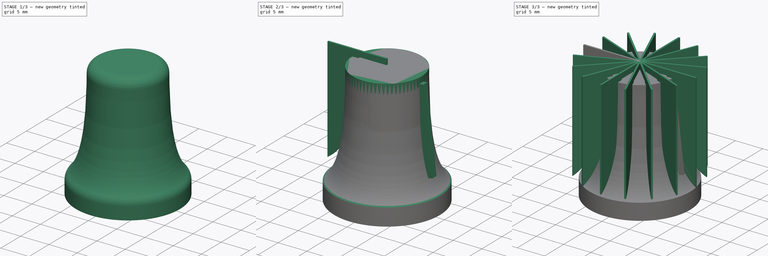
[diagram: build sequence overview — one tinted view per stage of 3, left to right]
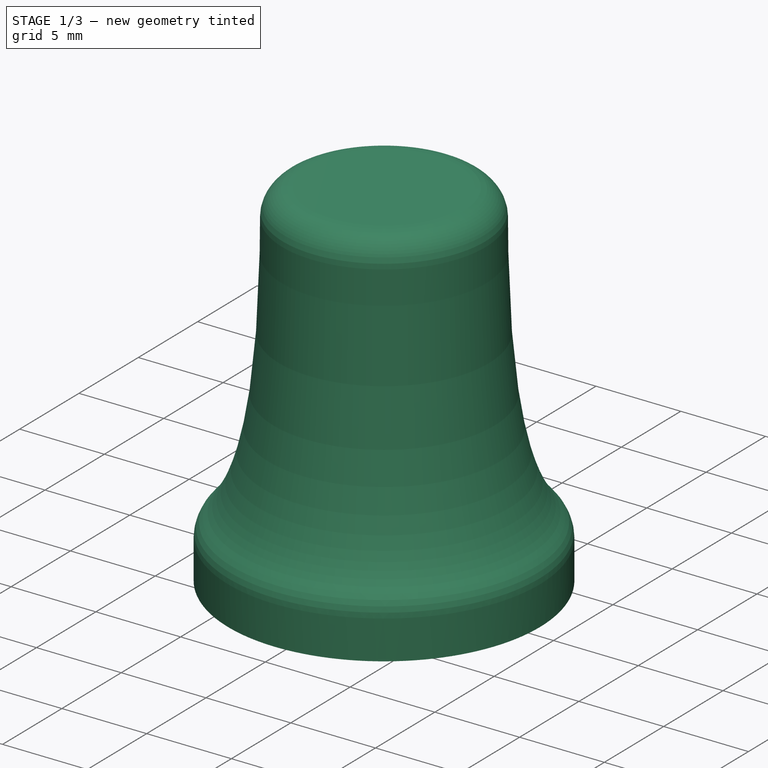
[diagram: stage 1 of 3 — iso view after this stage's code; geometry added in this stage tinted green]
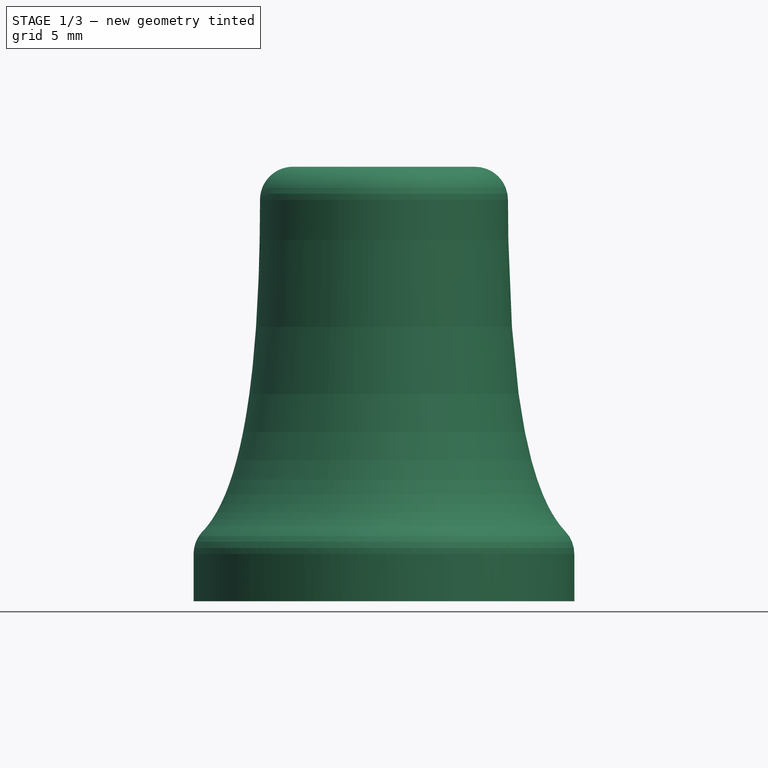
[diagram: stage 1 of 3 — front view after this stage's code; geometry added in this stage tinted green]
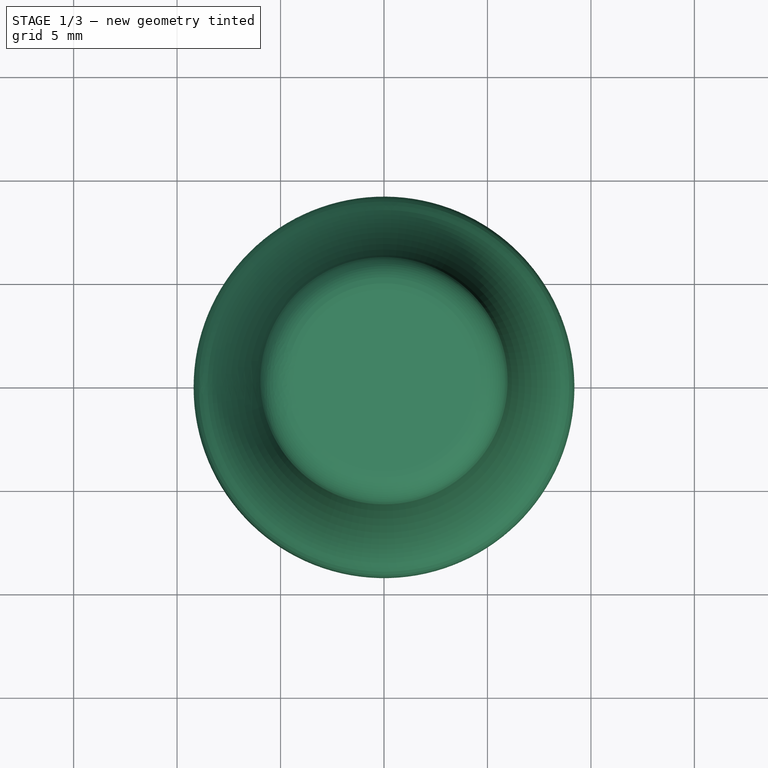
[diagram: stage 1 of 3 — top view after this stage's code; geometry added in this stage tinted green]
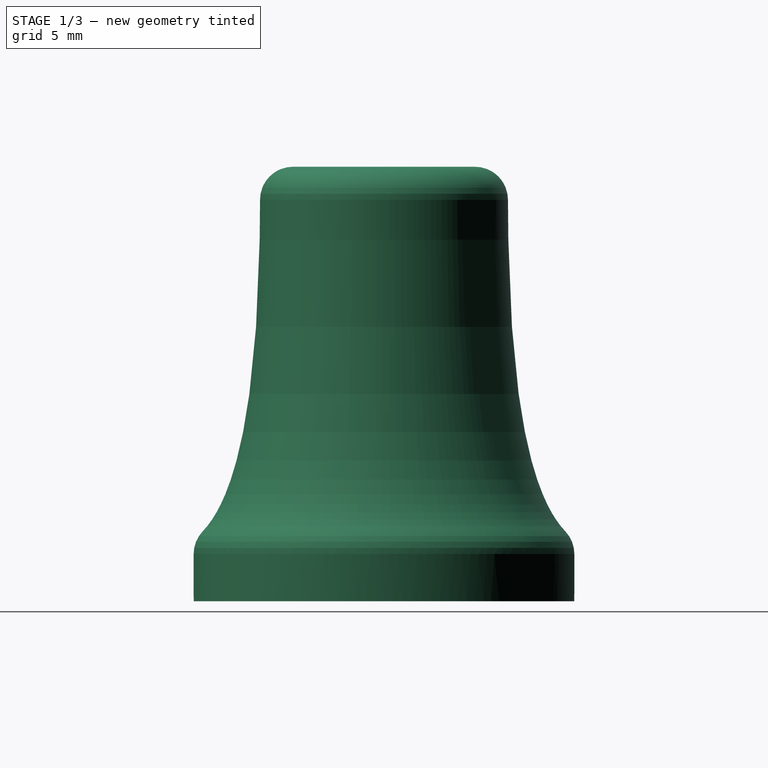
[diagram: stage 1 of 3 — right view after this stage's code; geometry added in this stage tinted green]
FCSTD DOCUMENT  (FreeCAD 0.18R16146 (Git))
Label: PotiKnob
License: All rights reserved
LicenseURL: http://en.wikipedia.org/wiki/All_rights_reserved
objects: Sketcher::SketchObject×4, Part::Feature×3, PartDesign::Fillet×3, PartDesign::Pad×2, PartDesign::Body×2, PartDesign::Revolution×1, PartDesign::PolarPattern×1
note: 19 computed .brp shape members not serialized (recipe doc carries the construction recipe); baked Part::Feature solids carry a one-line shape summary decoded from their .brp

FEATURE [Sketcher::SketchObject] Sketch
  MapMode = 5
  Placement = pos=(0,0,0) rot=(1,0,0;1.5708rad)
  Support = -> [XZ_Plane]
  sketch-geometry (21):
    g0: LineSegment StartX=0 StartY=21 StartZ=0 EndX=-6 EndY=21 EndZ=0
    g1: LineSegment StartX=-9.3 StartY=0 StartZ=0 EndX=-9.3 EndY=3 EndZ=0
    g2: Circle [constr] CenterX=-9.3 CenterY=3 CenterZ=0 NormalX=0 NormalY=0 NormalZ=1 AngleXU=0 Radius=2
    g3: Circle [constr] CenterX=-5.827 CenterY=5.389 CenterZ=0 NormalX=0 NormalY=0 NormalZ=1 AngleXU=0 Radius=2
    g4: Circle [constr] CenterX=-6 CenterY=21 CenterZ=0 NormalX=0 NormalY=0 NormalZ=1 AngleXU=0 Radius=2
    g5: BSplineCurve PolesCount=3 KnotsCount=2 Degree=2 IsPeriodic=0
    g6: GeomPoint [constr] X=-11 Y=4 Z=0
    g7: LineSegment StartX=0 StartY=21 StartZ=0 EndX=0 EndY=19.4 EndZ=0
    g8: LineSegment StartX=0 StartY=19.4 StartZ=0 EndX=-4.2 EndY=19.4 EndZ=0
    g9: Circle [constr] CenterX=-8.01845 CenterY=2.2205 CenterZ=0 NormalX=0 NormalY=0 NormalZ=1 AngleXU=0 Radius=0.3
    g10: Circle [constr] CenterX=-4.54545 CenterY=4.6095 CenterZ=0 NormalX=0 NormalY=0 NormalZ=1 AngleXU=0 Radius=0.3
    g11: Circle [constr] CenterX=-4.2 CenterY=19.4 CenterZ=0 NormalX=0 NormalY=0 NormalZ=1 AngleXU=0 Radius=0.3
    g12: BSplineCurve PolesCount=3 KnotsCount=2 Degree=2 IsPeriodic=0
    g13: GeomPoint [constr] X=-8.01845 Y=2.2205 Z=0
    g14: GeomPoint [constr] X=-4.2 Y=19.4 Z=0
    g15: LineSegment [constr] StartX=-9.3 StartY=3 StartZ=0 EndX=-8.01845 EndY=2.2205 EndZ=0
    g16: LineSegment [constr] StartX=-5.827 StartY=5.389 StartZ=0 EndX=-4.54545 EndY=4.6095 EndZ=0
    g17: LineSegment [constr] StartX=-5.827 StartY=5.389 StartZ=0 EndX=0 EndY=5.389 EndZ=0
    g18: LineSegment StartX=-8.3 StartY=0 StartZ=0 EndX=-9.3 EndY=0 EndZ=0
    g19: LineSegment StartX=-8.01845 StartY=2.2205 StartZ=0 EndX=-8.3 EndY=2 EndZ=0
    g20: LineSegment StartX=-8.3 StartY=2 StartZ=0 EndX=-8.3 EndY=0 EndZ=0
  constraints (52):
    c: PointOnObject(g0,g-2)
    c: Horizontal(g0)
    c: Vertical(g1)
    c: Coincident(g5,g1)
    c: Radius(g2) = 2
    c: Equal(g2,g3)
    c: Equal(g2,g4)
    c: Coincident(g5,g0)
    c: InternalAlignment(g2,g5)
    c: InternalAlignment(g3,g5)
    c: InternalAlignment(g4,g5)
    c: DistanceX(g1,g-1) = 9.3
    c: DistanceY(g1,g1) = 3
    c: DistanceX(g0,g0) = 6
    c: Coincident(g0,g7)
    c: Vertical(g7)
    c: Coincident(g7,g8)
    c: Horizontal(g8)
    c: Radius(g9) = 0.3
    c: Equal(g9,g10)
    c: Equal(g9,g11)
    c: Coincident(g12,g8)
    c: InternalAlignment(g9,g12)
    c: InternalAlignment(g10,g12)
    c: InternalAlignment(g11,g12)
    c: InternalAlignment(g13,g12)
    c: InternalAlignment(g14,g12)
    c: Coincident(g15,g1)
    c: Coincident(g16,g3)
    c: Coincident(g16,g10)
    c: Coincident(g17,g3)
    c: Horizontal(g17)
    c: PointOnObject(g17,g-2)
    c: Angle(g16,g17) = 0.546463
    c: Equal(g16,g15)
    c: DistanceX(g8,g8) = 4.2
    c: PointOnObject(g18,g-1)
    c: Coincident(g18,g1)
    c: Horizontal(g18)
    c: Coincident(g19,g20)
    c: Vertical(g20)
    c: Coincident(g19,g12)
    c: Coincident(g12,g15)
    c: DistanceX(g18,g18) = 1
    c: Coincident(g20,g18)
    c: Angle(g-1,g15) = 2.59513
    c: DistanceY(g20,g20) = 2
    c: Distance(g15) = 1.5
    c: DistanceY(g7,g7) = 1.6
    c: DistanceY(g18,g0) = 21
    c: DistanceX(g3,g-1) = 5.827
    c: DistanceY(g-1,g3) = 5.389
FEATURE [PartDesign::Revolution] Revolution
  Angle = 360
  Axis = (0,-2e-16,1)
  Base = (0,0,0)
  Placement = pos=(0,0,0) rot=(1,0,0;1.5708rad)
  Profile = -> Sketch
  ReferenceAxis = -> Sketch [V_Axis]
FEATURE [Part::Feature] Part__Feature002  label="Nut M9x0.75"
  Placement = pos=(0,0,0.6) rot=(0,0,1;0rad)
  shape: bbox 18.25 x 18.25 x 2.691 mm, 26 faces (baked)
FEATURE [Part::Feature] Part__Feature003  label="Washer M9"
  Placement = pos=(0,-1e-15,0.6) rot=(1,0,0;3.14159rad)
  shape: bbox 16 x 16 x 0.6 mm, 4 faces (baked)
FEATURE [Sketcher::SketchObject] Sketch004
  MapMode = 5
  Placement = pos=(0,-4e-15,19.4) rot=(1,0,0;3.14159rad)
  sketch-geometry (3):
    g0: ArcOfCircle CenterX=0 CenterY=0 CenterZ=0 NormalX=0 NormalY=0 NormalZ=1 AngleXU=0 Radius=2.47507 StartAngle=3.75424 EndAngle=8.81213
    g1: LineSegment StartX=-2.02493 StartY=1.42326 StartZ=0 EndX=-2.02493 EndY=-1.42326 EndZ=0
    g2: GeomPoint X=2.47507 Y=0 Z=0
  constraints (7):
    c: Coincident(g0,g-1)
    c: Coincident(g1,g0)
    c: Coincident(g1,g0)
    c: Vertical(g1)
    c: PointOnObject(g2,g0)
    c: PointOnObject(g2,g-1)
    c: DistanceX(g0,g2) = 4.5
FEATURE [PartDesign::Fillet] Fillet001
  Base = -> Revolution [Edge1,Edge2]
  BaseFeature = -> Revolution
  Placement = pos=(0,0,0) rot=(1,0,0;1.5708rad)
  Radius = 1.6
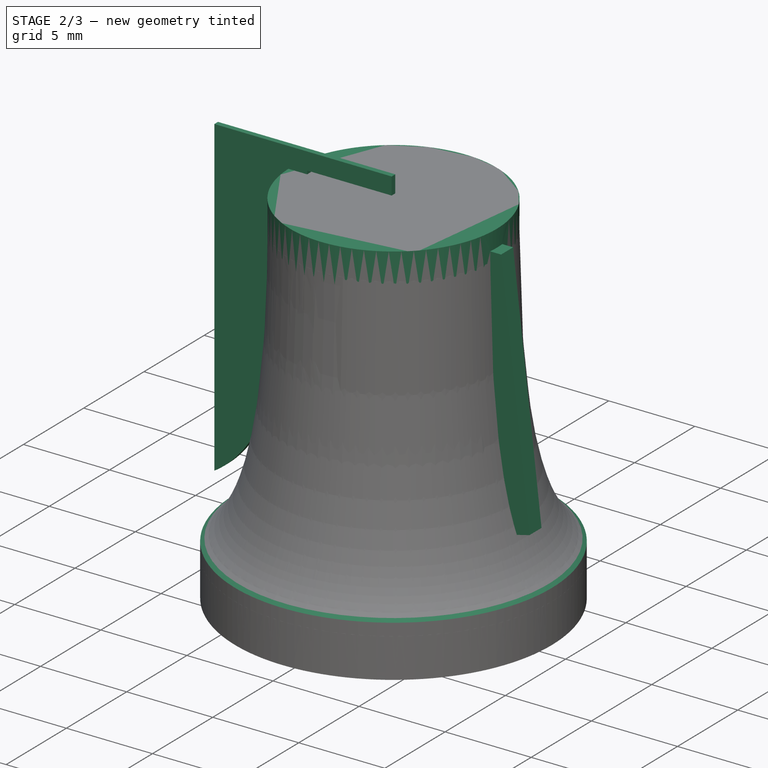
[diagram: stage 2 of 3 — iso view after this stage's code; geometry added in this stage tinted green]
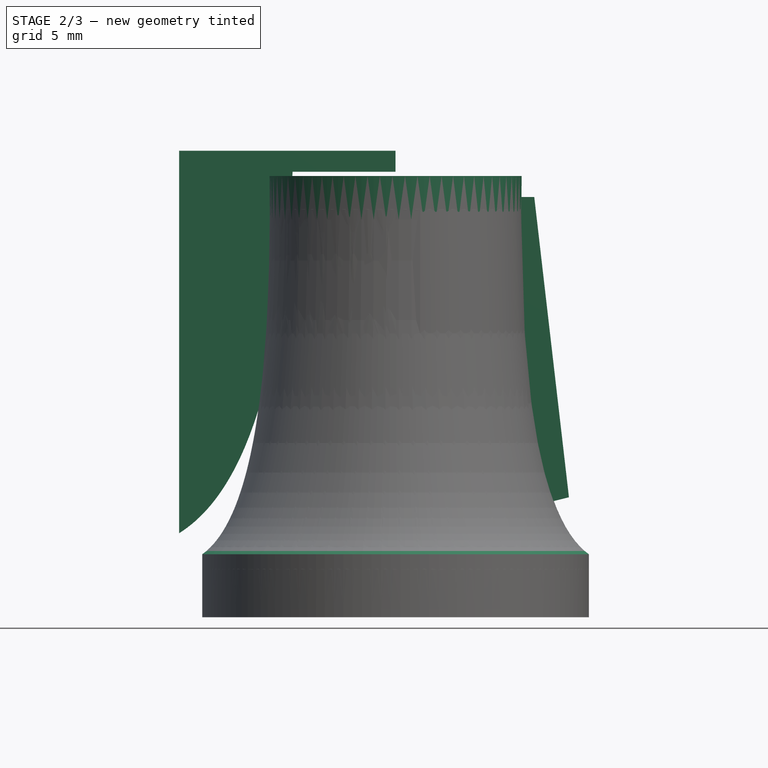
[diagram: stage 2 of 3 — front view after this stage's code; geometry added in this stage tinted green]
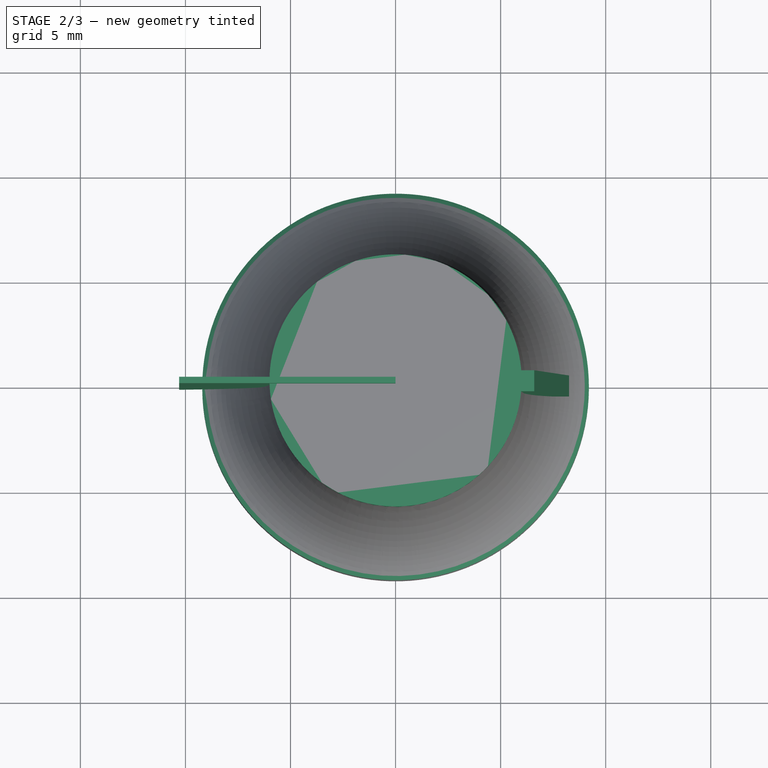
[diagram: stage 2 of 3 — top view after this stage's code; geometry added in this stage tinted green]
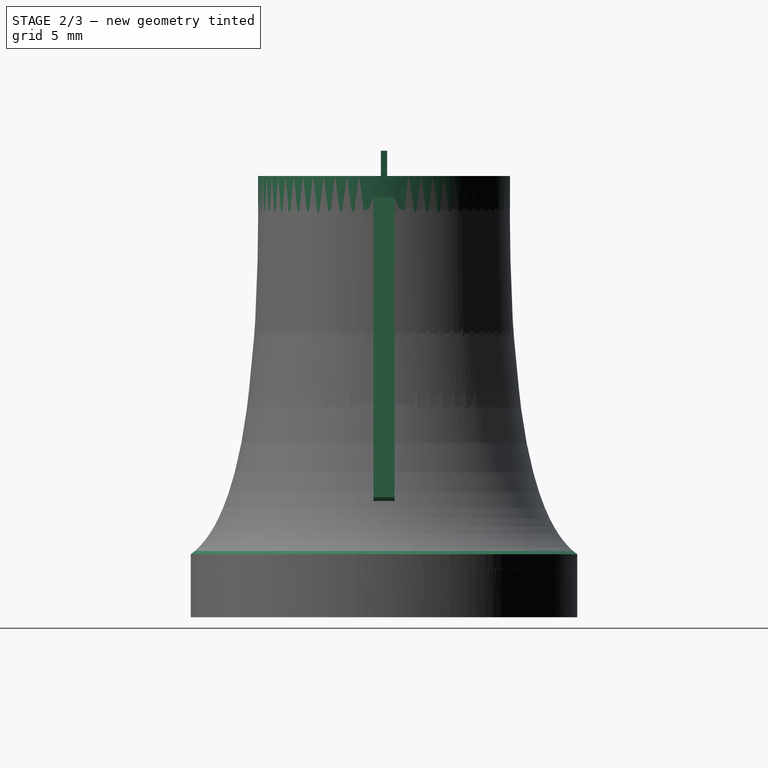
[diagram: stage 2 of 3 — right view after this stage's code; geometry added in this stage tinted green]
FEATURE [Sketcher::SketchObject] Sketch001
  MapMode = 5
  Placement = pos=(0,0,0) rot=(1,0,0;1.5708rad)
  Support = -> [XZ_Plane001]
  sketch-geometry (10):
    g0: Circle [constr] CenterX=-10.3 CenterY=4 CenterZ=0 NormalX=0 NormalY=0 NormalZ=1 AngleXU=0 Radius=0.6
    g1: Circle [constr] CenterX=-5.5 CenterY=7 CenterZ=0 NormalX=0 NormalY=0 NormalZ=1 AngleXU=0 Radius=0.6
    g2: Circle [constr] CenterX=-4.9 CenterY=21.2 CenterZ=0 NormalX=0 NormalY=0 NormalZ=1 AngleXU=0 Radius=0.6
    g3: BSplineCurve PolesCount=3 KnotsCount=2 Degree=2 IsPeriodic=0
    g4: GeomPoint [constr] X=-10.3 Y=4 Z=0
    g5: GeomPoint [constr] X=-4.9 Y=21.2 Z=0
    g6: LineSegment StartX=-10.3 StartY=22.2 StartZ=0 EndX=-10.3 EndY=4 EndZ=0
    g7: LineSegment StartX=-10.3 StartY=22.2 StartZ=0 EndX=0 EndY=22.2 EndZ=0
    g8: LineSegment StartX=0 StartY=22.2 StartZ=0 EndX=0 EndY=21.2 EndZ=0
    g9: LineSegment StartX=0 StartY=21.2 StartZ=0 EndX=-4.9 EndY=21.2 EndZ=0
  constraints (25):
    c: Radius(g0) = 0.6
    c: Equal(g0,g1)
    c: Equal(g0,g2)
    c: InternalAlignment(g0,g3)
    c: InternalAlignment(g1,g3)
    c: InternalAlignment(g2,g3)
    c: InternalAlignment(g4,g3)
    c: InternalAlignment(g5,g3)
    c: Coincident(g6,g3)
    c: Vertical(g6)
    c: DistanceX(g3,g-1) = 4.9
    c: DistanceX(g1,g-1) = 5.5
    c: DistanceX(g3,g-1) = 10.3
    c: DistanceY(g-1,g3) = 4
    c: DistanceY(g-1,g1) = 7
    c: DistanceY(g-1,g3) = 21.2
    c: Coincident(g6,g7)
    c: Horizontal(g7)
    c: Coincident(g7,g8)
    c: Vertical(g8)
    c: Coincident(g8,g9)
    c: Coincident(g9,g3)
    c: Horizontal(g9)
    c: PointOnObject(g7,g-2)
    c: DistanceY(g8,g8) = 1
FEATURE [PartDesign::Pad] Pad
  Length = 0.3
  Length2 = 100
  Midplane = true
  Placement = pos=(0,0,0) rot=(1,0,0;1.5708rad)
  Profile = -> Sketch001
  Type = 0
FEATURE [PartDesign::Body] Body001  label="Fugen"
  Group = -> [Sketch001,Pad,PolarPattern,Fillet]
  Origin = -> Origin001
  Tip = -> Fillet
FEATURE [Sketcher::SketchObject] Sketch003
  MapMode = 5
  Placement = pos=(0,0,0) rot=(1,0,0;1.5708rad)
  Support = -> [XZ_Plane]
  sketch-geometry (5):
    g0: LineSegment StartX=3.4 StartY=20 StartZ=0 EndX=6.6 EndY=20 EndZ=0
    g1: LineSegment StartX=6.6 StartY=20 StartZ=0 EndX=8.25148 EndY=5.70961 EndZ=0
    g2: LineSegment StartX=8.25148 StartY=5.70961 StartZ=0 EndX=3.4 EndY=4.5 EndZ=0
    g3: LineSegment StartX=3.4 StartY=4.5 StartZ=0 EndX=3.4 EndY=20 EndZ=0
    g4: LineSegment [constr] StartX=0 StartY=20 StartZ=0 EndX=3.4 EndY=20 EndZ=0
  constraints (15):
    c: Horizontal(g0)
    c: Coincident(g0,g1)
    c: Coincident(g1,g2)
    c: Coincident(g2,g3)
    c: Coincident(g3,g0)
    c: Vertical(g3)
    c: PointOnObject(g4,g-2)
    c: Coincident(g4,g0)
    c: Horizontal(g4)
    c: DistanceY(g-1,g4) = 20
    c: DistanceX(g4,g4) = 3.4
    c: DistanceY(g3,g3) = 15.5
    c: Angle(g2,g3) = 1.32645
    c: Distance(g2) = 5
    c: DistanceX(g-1,g0) = 6.6
FEATURE [PartDesign::Pad] Pad002  label="Rippe"
  BaseFeature = -> Revolution
  Length = 1
  Length2 = 100
  Midplane = true
  Placement = pos=(0,0,0) rot=(1,0,0;1.5708rad)
  Profile = -> Sketch003
  Type = 0
FEATURE [PartDesign::Fillet] Fillet002
  Base = -> Fillet001 [Edge9]
  BaseFeature = -> Fillet001
  Placement = pos=(0,0,0) rot=(1,0,0;1.5708rad)
  Radius = 0.4
FEATURE [PartDesign::Body] Body  label="Gehäuse"
  Group = -> [Sketch,Revolution,Sketch003,Pad002,Sketch004,Fillet001,Fillet002]
  Origin = -> Origin
  Tip = -> Fillet002
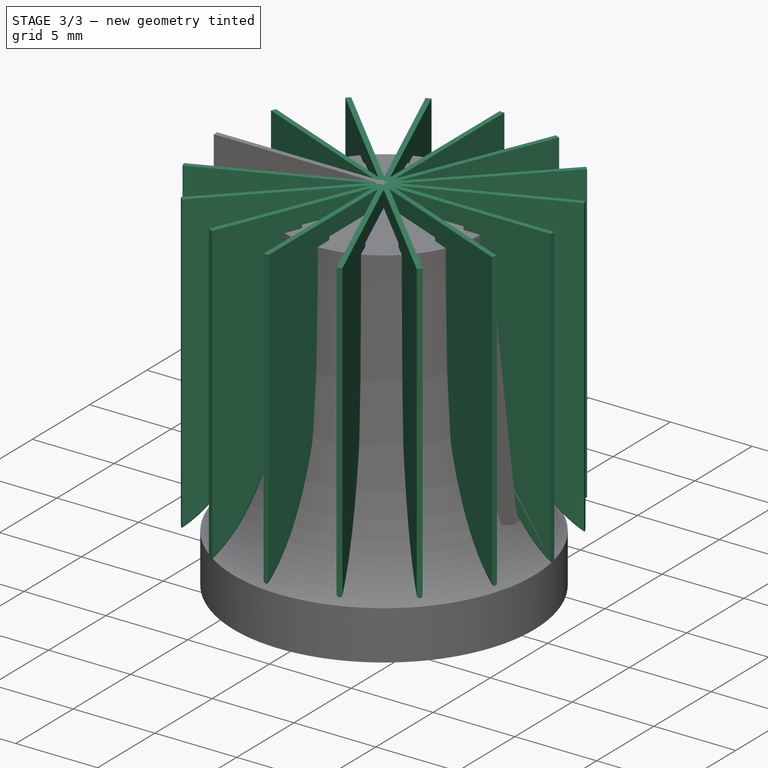
[diagram: stage 3 of 3 — iso view after this stage's code; geometry added in this stage tinted green]
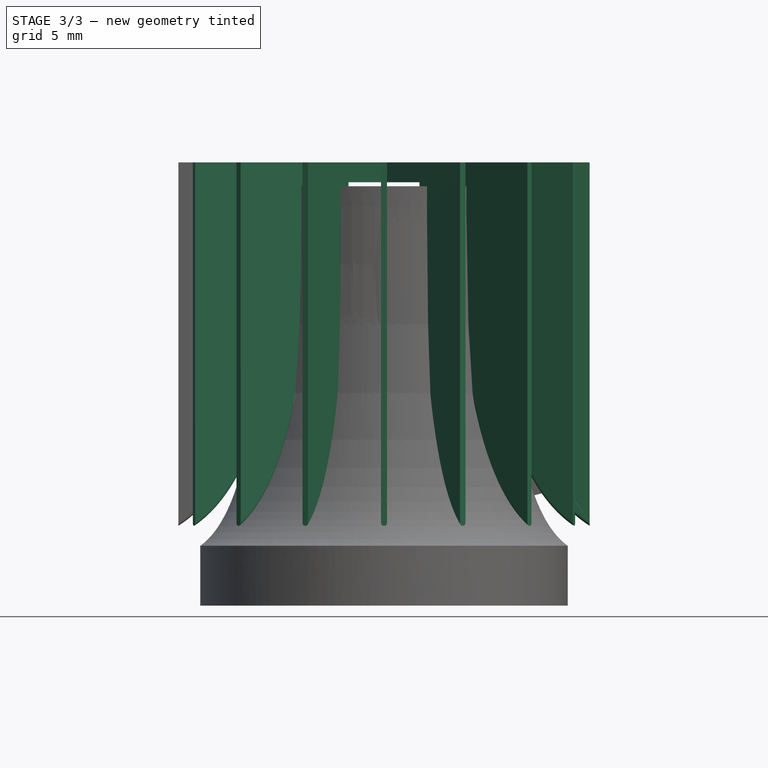
[diagram: stage 3 of 3 — front view after this stage's code; geometry added in this stage tinted green]
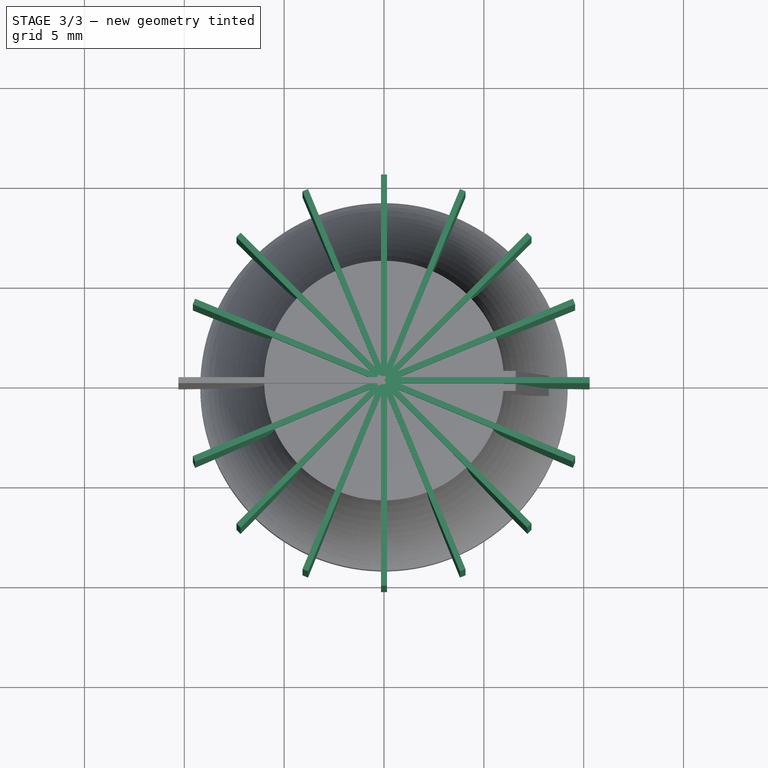
[diagram: stage 3 of 3 — top view after this stage's code; geometry added in this stage tinted green]
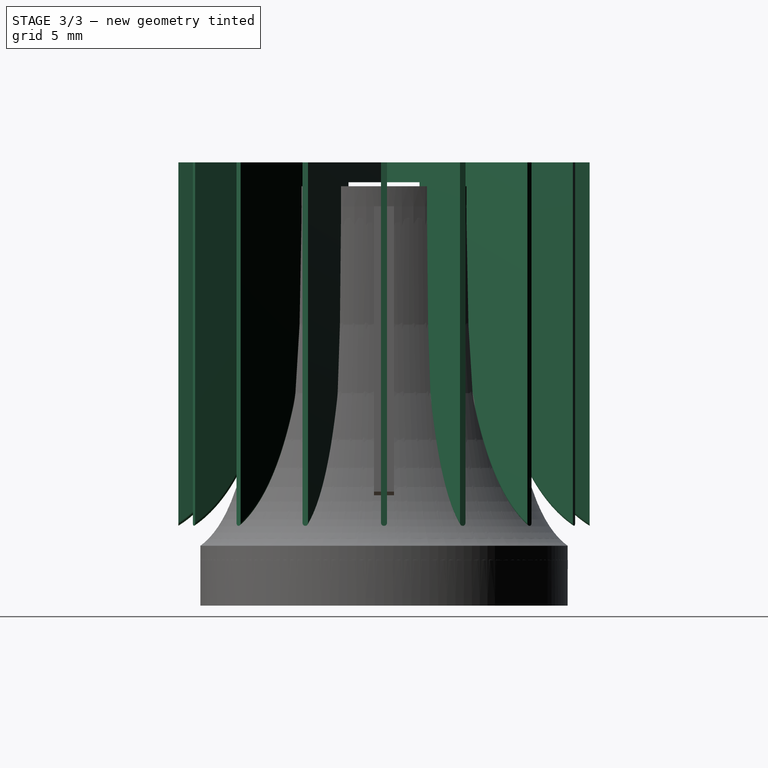
[diagram: stage 3 of 3 — right view after this stage's code; geometry added in this stage tinted green]
FEATURE [PartDesign::PolarPattern] PolarPattern
  Angle = 360
  Axis = -> Z_Axis001
  BaseFeature = -> Pad
  Occurrences = 16
  Originals = -> [Pad]
  Placement = pos=(0,0,0) rot=(1,0,0;1.5708rad)
FEATURE [Part::Feature] Part__Feature  label="RK09L11-L200"
  Placement = pos=(0,0,-5) rot=(0.865865,-0.500278,0;3.14159rad)
  shape: bbox 14.9 x 14 x 33.5 mm, 427 faces (baked)
FEATURE [PartDesign::Fillet] Fillet
  Base = -> PolarPattern [Edge209,Edge276,Edge331,Edge382,Edge431,Edge490,Edge545,Edge596,Edge629,Edge656,Edge669,Edge671,Edge663,Edge641,Edge565,Edge609,Edge454,Edge510,Edge105,Edge156,Edge63,Edge31,Edge4,Edge3,Edge27,Edge57,Edge127,Edge179,Edge239,Edge301,Edge354,Edge402]
  BaseFeature = -> PolarPattern
  Placement = pos=(0,0,0) rot=(1,0,0;1.5708rad)
  Radius = 0.13
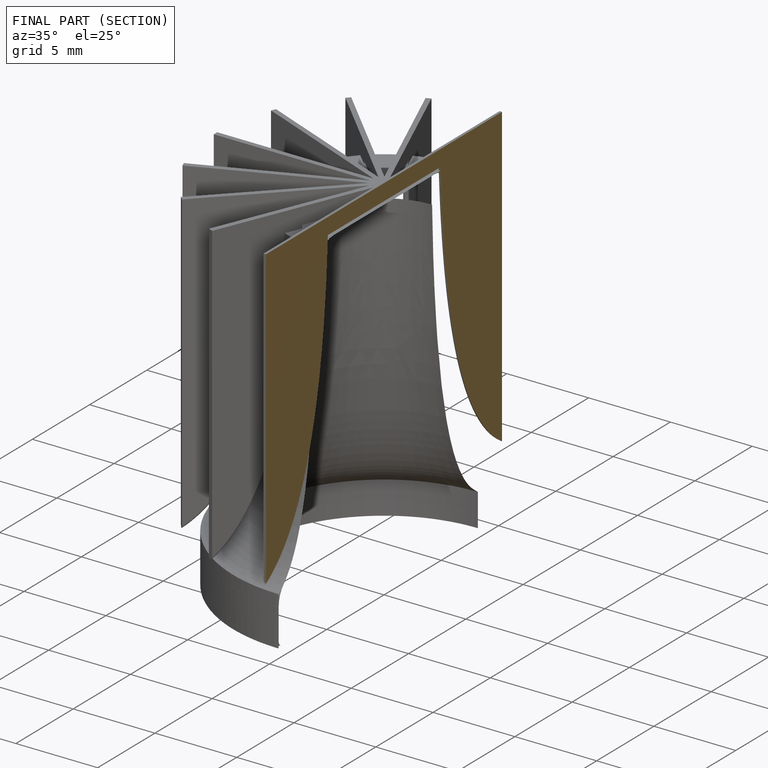
[diagram: finished part — half-section view (interior)]
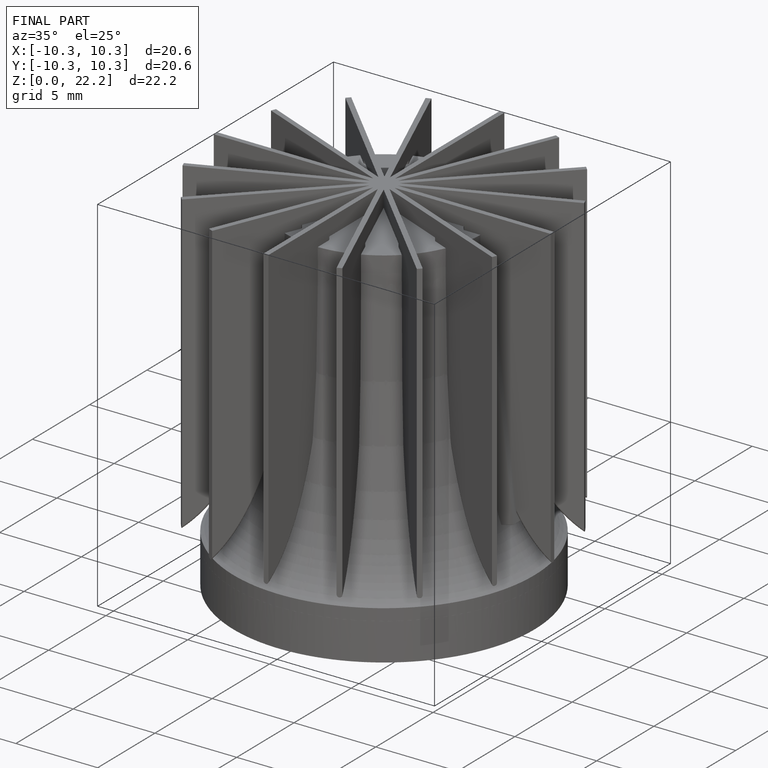
[diagram: finished part — iso view with bounding-box wireframe]
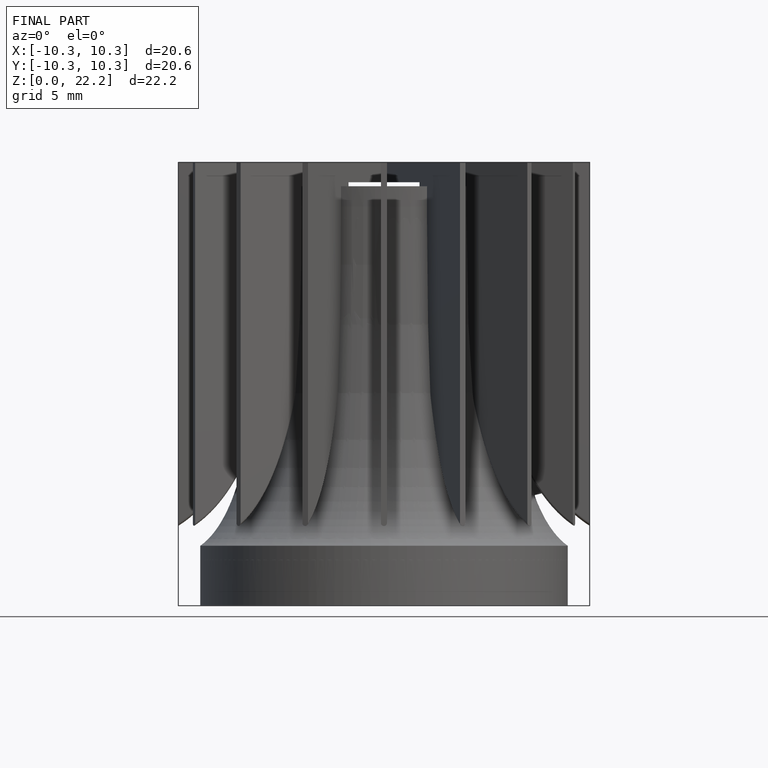
[diagram: finished part — front view with bounding-box wireframe]
